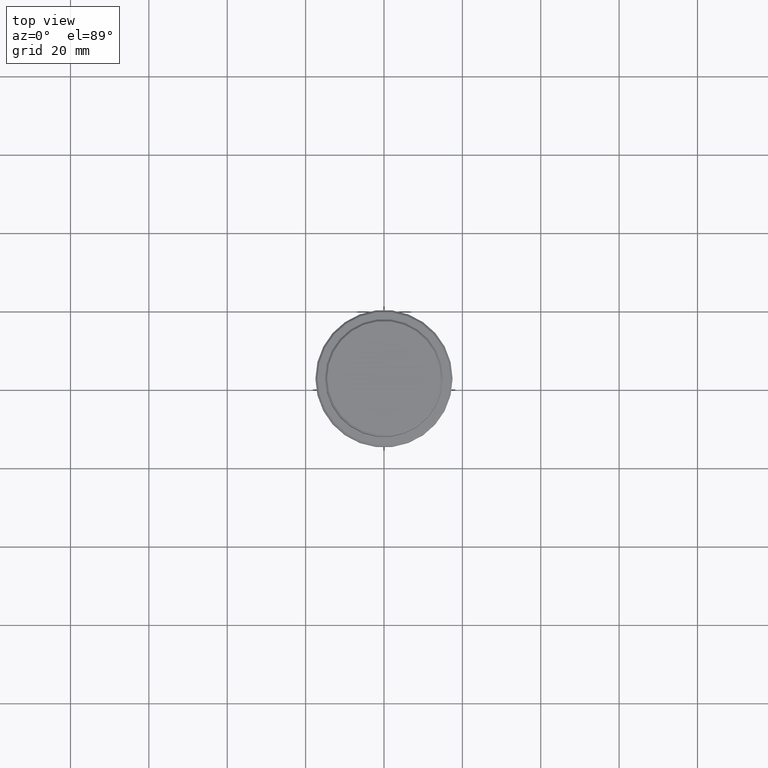
[diagram: clean part render]
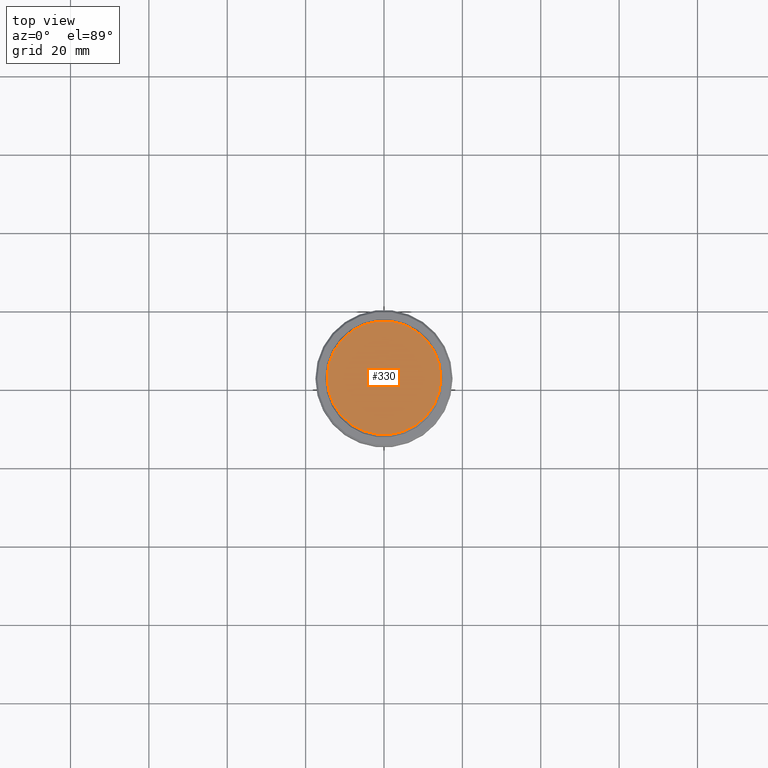
[diagram: same view with one face highlighted and labeled with its STEP entity id]
A machine part, top view. The second image highlights one B-rep face of the part: STEP entity #330.
In plain terms, the highlighted planar face has unit normal (0, -0, 1).
Its self-contained STEP definition (entity closure, byte-faithful):
#23 = CARTESIAN_POINT ( 'NONE',  ( -14.50000000000003908, 0.000000000000000000, 0.000000000000000000 ) ) ;
#74 = ORIENTED_EDGE ( 'NONE', *, *, #345, .T. ) ;
#96 = DIRECTION ( 'NONE',  ( 1.000000000000000000, 0.000000000000000000, 0.000000000000000000 ) ) ;
#105 = CIRCLE ( 'NONE', #1408, 14.50000000000003908 ) ;
#312 = DIRECTION ( 'NONE',  ( 1.000000000000000000, 0.000000000000000000, 0.000000000000000000 ) ) ;
#330 = ADVANCED_FACE ( 'NONE', ( #1173 ), #1088, .T. ) ;
#345 = EDGE_CURVE ( 'NONE', #419, #495, #1224, .T. ) ;
#419 = VERTEX_POINT ( 'NONE', #639 ) ;
#422 = DIRECTION ( 'NONE',  ( 1.000000000000000000, 0.000000000000000000, 0.000000000000000000 ) ) ;
#495 = VERTEX_POINT ( 'NONE', #23 ) ;
#564 = AXIS2_PLACEMENT_3D ( 'NONE', #1298, #623, #422 ) ;
#567 = ORIENTED_EDGE ( 'NONE', *, *, #786, .T. ) ;
#623 = DIRECTION ( 'NONE',  ( 0.000000000000000000, -0.000000000000000000, 1.000000000000000000 ) ) ;
#639 = CARTESIAN_POINT ( 'NONE',  ( 14.50000000000003908, 1.806354028742348168E-15, 0.000000000000000000 ) ) ;
#786 = EDGE_CURVE ( 'NONE', #495, #419, #105, .T. ) ;
#950 = DIRECTION ( 'NONE',  ( -0.000000000000000000, -0.000000000000000000, 1.000000000000000000 ) ) ;
#1072 = CARTESIAN_POINT ( 'NONE',  ( 0.000000000000000000, 0.000000000000000000, 0.000000000000000000 ) ) ;
#1088 = PLANE ( 'NONE',  #564 ) ;
#1099 = EDGE_LOOP ( 'NONE', ( #567, #74 ) ) ;
#1165 = AXIS2_PLACEMENT_3D ( 'NONE', #1405, #950, #96 ) ;
#1167 = DIRECTION ( 'NONE',  ( -0.000000000000000000, -0.000000000000000000, 1.000000000000000000 ) ) ;
#1173 = FACE_OUTER_BOUND ( 'NONE', #1099, .T. ) ;
#1224 = CIRCLE ( 'NONE', #1165, 14.50000000000003908 ) ;
#1298 = CARTESIAN_POINT ( 'NONE',  ( 0.000000000000000000, 0.000000000000000000, 0.000000000000000000 ) ) ;
#1405 = CARTESIAN_POINT ( 'NONE',  ( 0.000000000000000000, 0.000000000000000000, 0.000000000000000000 ) ) ;
#1408 = AXIS2_PLACEMENT_3D ( 'NONE', #1072, #1167, #312 ) ;